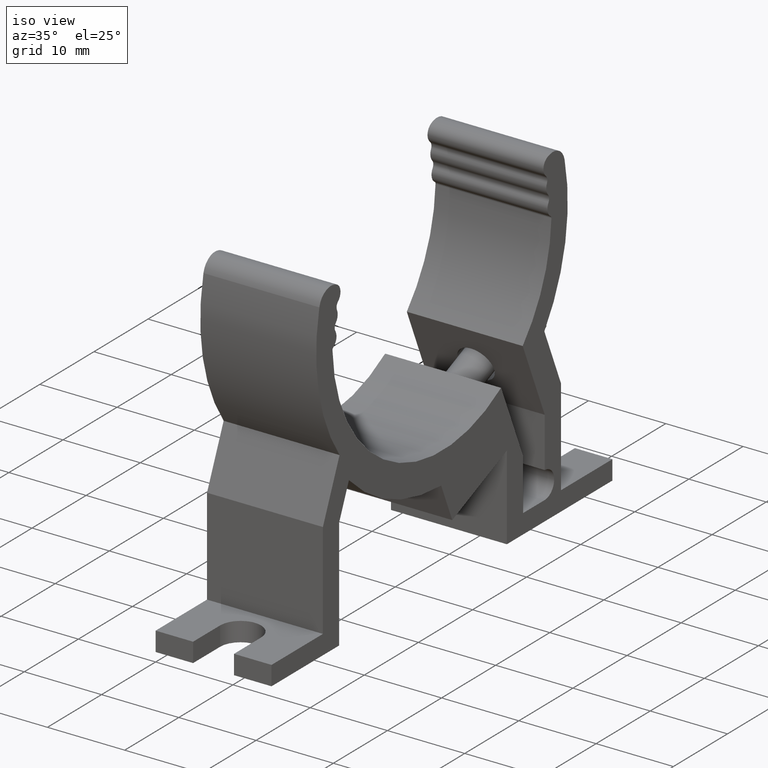
[diagram: clean part render]
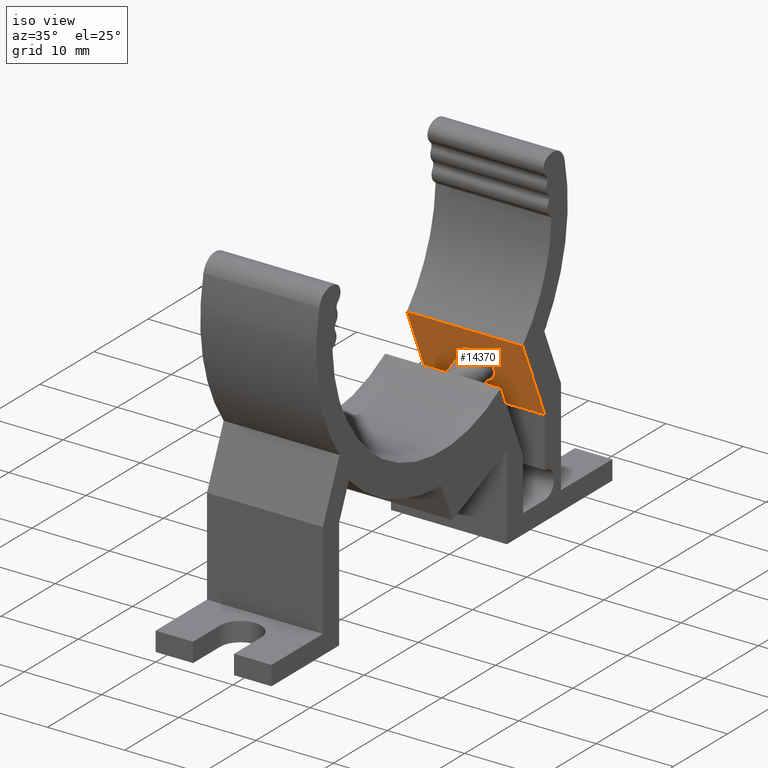
[diagram: same view with one face highlighted and labeled with its STEP entity id]
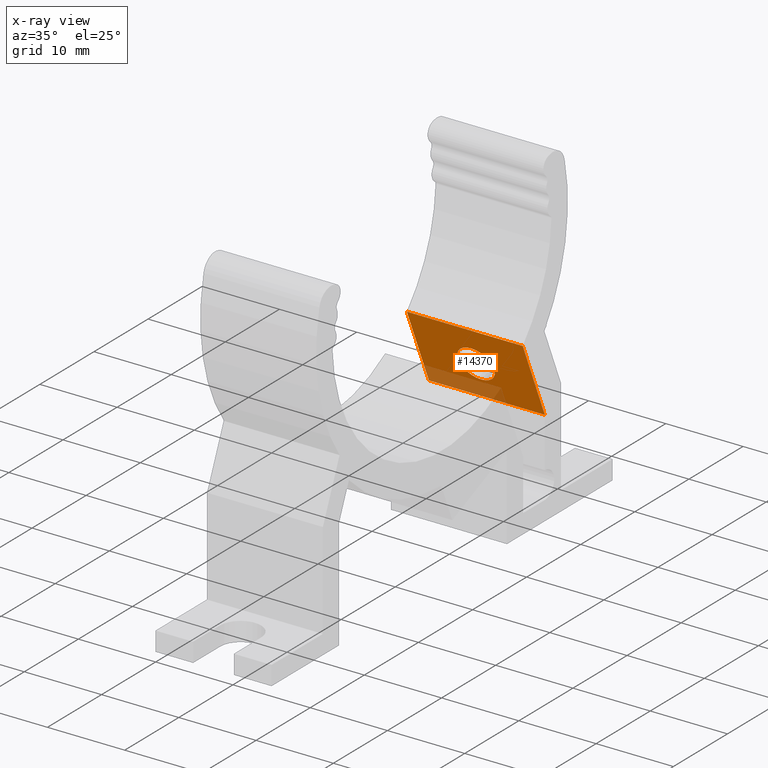
[diagram: x-ray of the same camera — body ghosted, the highlighted face saturated]
A machine part, iso view. The second image highlights one B-rep face of the part: STEP entity #14370.
The next image is the same camera in x-ray: the body ghosted, the highlighted face saturated — about 17% of this face is hidden behind the body in this view.
In plain terms, the highlighted planar face has unit normal (0, -0.9205, -0.3907).
Its self-contained STEP definition (entity closure, byte-faithful):
#4110=CARTESIAN_POINT('',(15.3956975010443,-14.7886308278975,
-7.49999999999993));
#4120=VERTEX_POINT('',#4110);
#4150=CARTESIAN_POINT('',(9.11829614838079,0.,-7.49999999999993));
#4160=DIRECTION('',(-0.390731128489275,0.92050485345244,0.));
#4170=VECTOR('',#4160,1.);
#4180=LINE('',#4150,#4170);
#4190=CARTESIAN_POINT('',(19.4688773541871,-24.3844412213496,
-7.49999999999993));
#4200=VERTEX_POINT('',#4190);
#4210=EDGE_CURVE('',#4200,#4120,#4180,.T.);
#5660=CARTESIAN_POINT('',(15.3956975010443,-14.7886308278975,
-7.49999999999993));
#5670=DIRECTION('',(0.,0.,1.));
#5680=VECTOR('',#5670,1.);
#5690=LINE('',#5660,#5680);
#5700=CARTESIAN_POINT('',(15.3956975010443,-14.7886308278975,
7.50000000000007));
#5710=VERTEX_POINT('',#5700);
#5720=EDGE_CURVE('',#4120,#5710,#5690,.T.);
#7330=CARTESIAN_POINT('',(19.4688773541871,-24.3844412213496,
7.50000000000007));
#7340=VERTEX_POINT('',#7330);
#7370=CARTESIAN_POINT('',(9.11829614838079,0.,7.50000000000007));
#7380=DIRECTION('',(0.390731128489275,-0.92050485345244,0.));
#7390=VECTOR('',#7380,1.);
#7400=LINE('',#7370,#7390);
#7410=EDGE_CURVE('',#5710,#7340,#7400,.T.);
#12880=CARTESIAN_POINT('',(18.393158253846,-21.8502058338492,
6.57849322925872E-14));
#12890=VERTEX_POINT('',#12880);
#12940=CARTESIAN_POINT('',(17.4749401018962,-19.6870194282359,
6.54971402947876E-14));
#12950=DIRECTION('',(0.920504853452441,0.390731128489273,
-6.16297582203916E-33));
#12960=DIRECTION('',(0.390731128489273,-0.920504853452441,
9.70479842645403E-17));
#12970=AXIS2_PLACEMENT_3D('',#12940,#12950,#12960);
#12980=CIRCLE('',#12970,2.35);
#12990=CARTESIAN_POINT('',(16.5567219499464,-17.5238330226227,
6.54971402947876E-14));
#13000=VERTEX_POINT('',#12990);
#13010=EDGE_CURVE('',#12890,#13000,#12980,.T.);
#14160=CARTESIAN_POINT('',(15.3956975010443,-14.7886308278975,
-7.49999999999993));
#14170=DIRECTION('',(-0.92050485345244,-0.390731128489275,0.));
#14180=DIRECTION('',(0.390731128489275,-0.92050485345244,0.));
#14190=AXIS2_PLACEMENT_3D('',#14160,#14170,#14180);
#14200=PLANE('',#14190);
#14210=ORIENTED_EDGE('',*,*,#13010,.T.);
#14220=EDGE_CURVE('',#13000,#12890,#12980,.T.);
#14230=ORIENTED_EDGE('',*,*,#14220,.T.);
#14240=EDGE_LOOP('',(#14230,#14210));
#14250=FACE_BOUND('',#14240,.T.);
#14260=ORIENTED_EDGE('',*,*,#7410,.F.);
#14270=CARTESIAN_POINT('',(19.4688773541871,-24.3844412213496,0.));
#14280=DIRECTION('',(0.,0.,1.));
#14290=VECTOR('',#14280,1.);
#14300=LINE('',#14270,#14290);
#14310=EDGE_CURVE('',#4200,#7340,#14300,.T.);
#14320=ORIENTED_EDGE('',*,*,#14310,.T.);
#14330=ORIENTED_EDGE('',*,*,#4210,.F.);
#14340=ORIENTED_EDGE('',*,*,#5720,.F.);
#14350=EDGE_LOOP('',(#14340,#14330,#14320,#14260));
#14360=FACE_OUTER_BOUND('',#14350,.T.);
#14370=ADVANCED_FACE('',(#14250,#14360),#14200,.T.);